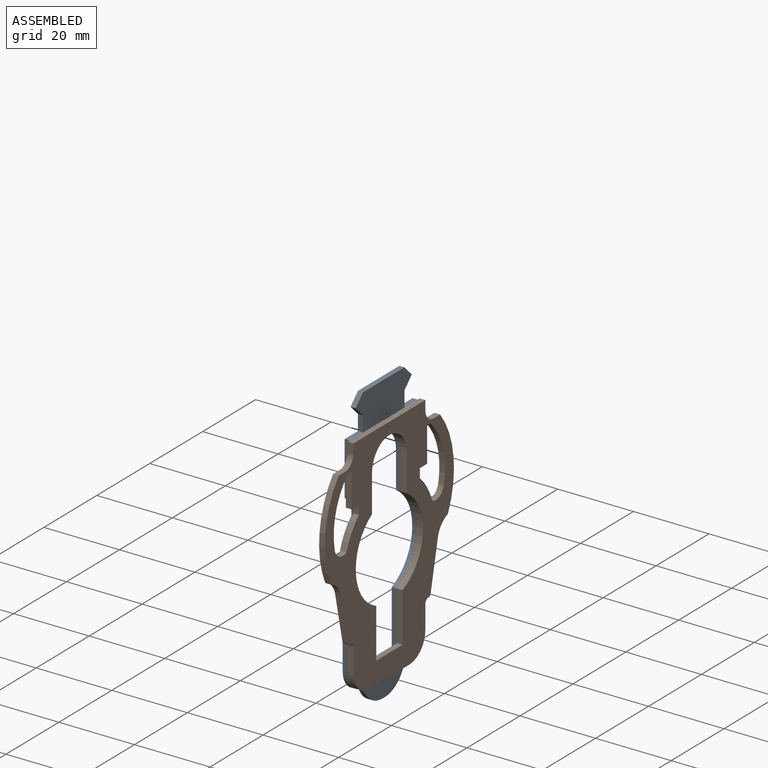
[diagram: assembled view]
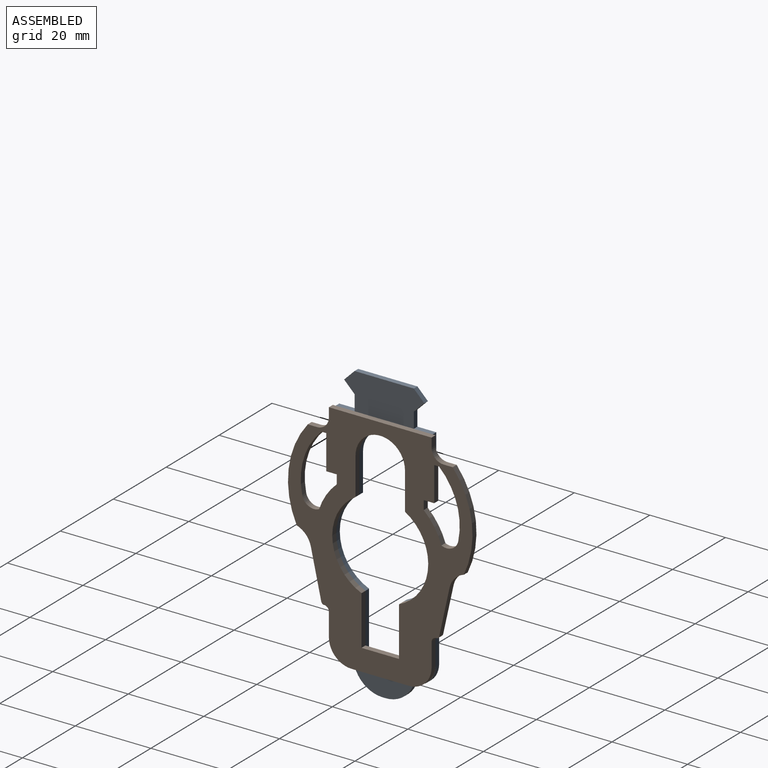
[diagram: assembled view, second angle]
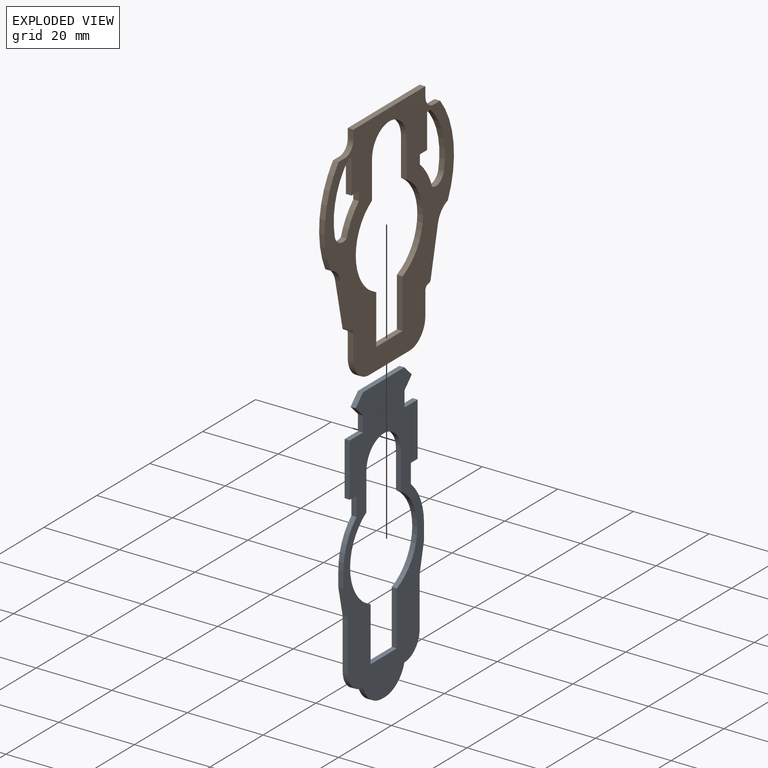
[diagram: exploded view]
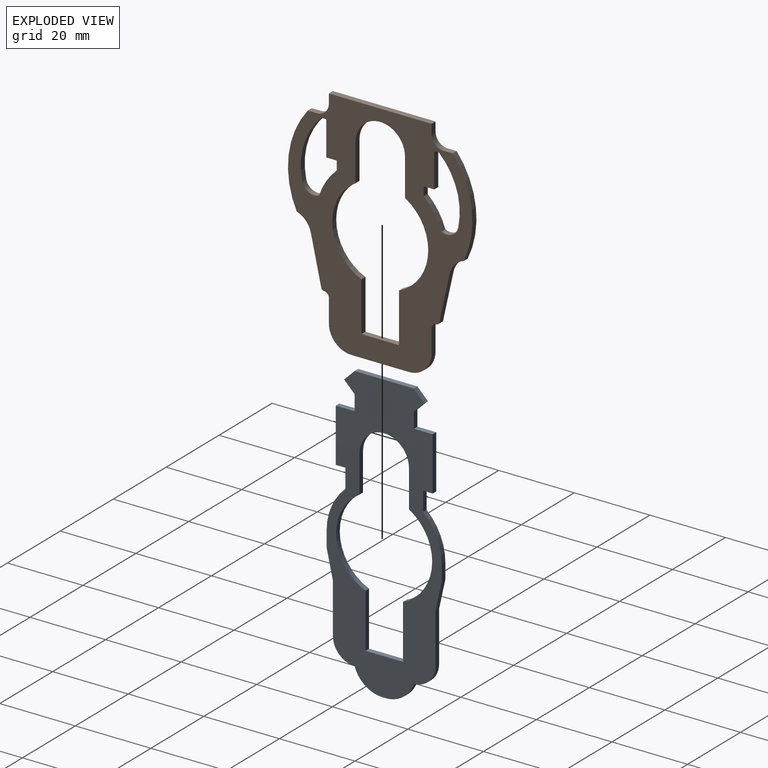
[diagram: exploded view, second angle]
ASSEMBLY  parts=2 mates=3
PART A: 38 faces, bbox 1.3x30.5x76.1 mm
  f0: plane 15.67x1.35mm, normal (0,0,1), area 21.1mm2, adj f1,f2,f36,f37
  f1: plane 2.77x2.77mm, normal (0,0.71,0.71), area 5.3mm2, adj f0,f32,f36,f37
  f2: plane 2.77x2.77mm, normal (0,-0.71,0.71), area 5.3mm2, adj f0,f33,f36,f37
  f3: plane 4.09x1.35mm, normal (0,-1,0), area 5.5mm2, adj f16,f33,f36,f37
  f4: plane 4.09x1.35mm, normal (0,1,0), area 5.5mm2, adj f31,f32,f36,f37
  f5: plane 1.35x0.73mm, normal (0,0,-1), area 1mm2, adj f34,f35,f36,f37
  f6: cylinder r=15.24mm len=11.24mm, axis (1,0,0), area 17mm2, adj f19,f20,f36,f37
  f7: cylinder r=12.7mm len=22.57mm, axis (1,0,0), area 37.6mm2, adj f12,f13,f36,f37
  f8: cylinder r=12.7mm len=22.57mm, axis (1,0,0), area 37.6mm2, adj f11,f14,f36,f37
  f9: cylinder r=15.24mm len=11.24mm, axis (1,0,0), area 17mm2, adj f27,f28,f36,f37
  f10: cylinder r=6.55mm len=13.1mm, axis (-1,0,0), area 27.7mm2, adj f11,f12,f36,f37
  f11: plane 9.88x1.35mm, normal (0,-1,0), area 13.3mm2, adj f8,f10,f36,f37
  f12: plane 9.88x1.35mm, normal (0,1,0), area 13.3mm2, adj f7,f10,f36,f37
  f13: plane 14.34x1.35mm, normal (0,1,0), area 19.3mm2, adj f7,f15,f36,f37
  f14: plane 14.34x1.35mm, normal (0,-1,0), area 19.3mm2, adj f8,f15,f36,f37
  f15: plane 9.92x1.35mm, normal (0,0,1), area 13.4mm2, adj f13,f14,f36,f37
  f16: plane 4.99x1.35mm, normal (0,0,1), area 6.7mm2, adj f3,f17,f36,f37
  f17: plane 14.16x1.35mm, normal (0,-1,0), area 19.1mm2, adj f16,f18,f36,f37
  f18: plane 2.54x1.35mm, normal (0,0,-1), area 3.4mm2, adj f17,f19,f36,f37
  f19: plane 5.08x1.35mm, normal (0,-1,0), area 6.8mm2, adj f6,f18,f36,f37
  f20: plane 4.06x1.35mm, normal (0,-1,0), area 5.5mm2, adj f6,f21,f36,f37
  f21: plane 7.45x1.65mm, normal (0,-0.98,-0.22), area 10.3mm2, adj f20,f22,f36,f37
  f22: plane 13.22x1.35mm, normal (0,-1,0), area 17.8mm2, adj f21,f23,f36,f37
  f23: cylinder r=5.75mm len=5.75mm, axis (-1,0,0), area 12.2mm2, adj f22,f34,f36,f37
  f24: cylinder r=5.75mm len=5.75mm, axis (-1,0,0), area 12.2mm2, adj f25,f35,f36,f37
  f25: plane 13.22x1.35mm, normal (0,1,0), area 17.8mm2, adj f24,f26,f36,f37
  f26: plane 7.45x1.65mm, normal (0,0.98,-0.22), area 10.3mm2, adj f25,f27,f36,f37
  f27: plane 4.06x1.35mm, normal (0,1,0), area 5.5mm2, adj f9,f26,f36,f37
  f28: plane 5.08x1.35mm, normal (0,1,0), area 6.8mm2, adj f9,f29,f36,f37
  f29: plane 2.54x1.35mm, normal (0,0,-1), area 3.4mm2, adj f28,f30,f36,f37
  f30: plane 14.16x1.35mm, normal (0,1,0), area 19.1mm2, adj f29,f31,f36,f37
  f31: plane 4.99x1.35mm, normal (0,0,1), area 6.7mm2, adj f4,f30,f36,f37
  f32: plane 2.77x2.77mm, normal (0,0.71,-0.71), area 5.3mm2, adj f1,f4,f36,f37
  f33: plane 2.77x2.77mm, normal (0,-0.71,-0.71), area 5.3mm2, adj f2,f3,f36,f37
  f34: cylinder r=7.84mm len=7.47mm, axis (-1,0,0), area 13.3mm2, adj f5,f23,f36,f37
  f35: cylinder r=7.84mm len=7.47mm, axis (-1,0,0), area 13.3mm2, adj f5,f24,f36,f37
  f36: plane 76.06x30.48mm, normal (-1,0,0), area 1023.3mm2, adj f0,f1,f2,f3,f4,f5,f6,f7
  f37: plane 76.06x30.48mm, normal (1,0,0), area 1023.3mm2, adj f0,f1,f2,f3,f4,f5,f6,f7
PART B: 46 faces, bbox 48.8x1.5x61 mm
  f0: plane 60.96x48.83mm, normal (0,1,0), area 1228.7mm2, adj f2,f3,f4,f5,f6,f7,f8,f9
  f1: plane 60.96x48.83mm, normal (0,-1,0), area 1228.7mm2, adj f2,f3,f4,f5,f6,f7,f8,f9
  f2: cylinder r=5.97mm len=5.97mm, axis (0,-1,0), area 14.1mm2, adj f0,f1,f3,f23
  f3: plane 6.1x1.5mm, normal (1,0,0), area 9.1mm2, adj f0,f1,f2,f4
  f4: cylinder r=1.27mm len=1.5mm, axis (0,-1,0), area 3mm2, adj f0,f1,f3,f5
  f5: cylinder r=0.76mm len=1.5mm, axis (0,-1,0), area 1.5mm2, adj f0,f1,f4,f6
  f6: plane 12.4x2.75mm, normal (0.98,0,-0.22), area 19mm2, adj f0,f1,f5,f7
  f7: cylinder r=5.59mm len=4.11mm, axis (0,-1,0), area 8.7mm2, adj f0,f1,f6,f8
  f8: cylinder r=23.46mm len=24.93mm, axis (0,-1,0), area 39.7mm2, adj f0,f1,f7,f9
  f9: plane 2.41x1.5mm, normal (0,0,1), area 3.6mm2, adj f0,f1,f8,f10
  f10: cylinder r=3.17mm len=3.18mm, axis (0,-1,0), area 7.5mm2, adj f0,f1,f9,f11
  f11: plane 2.41x1.5mm, normal (1,0,0), area 3.6mm2, adj f0,f1,f10,f12
  f12: plane 27.18x1.5mm, normal (0,0,1), area 40.8mm2, adj f0,f1,f11,f13
  f13: plane 2.41x1.5mm, normal (-1,0,0), area 3.6mm2, adj f0,f1,f12,f14
  f14: cylinder r=3.17mm len=3.18mm, axis (0,-1,0), area 7.5mm2, adj f0,f1,f13,f15
  f15: plane 2.41x1.5mm, normal (0,0,1), area 3.6mm2, adj f0,f1,f14,f16
  f16: cylinder r=23.46mm len=24.93mm, axis (0,-1,0), area 39.7mm2, adj f0,f1,f15,f17
  f17: cylinder r=5.59mm len=4.11mm, axis (0,-1,0), area 8.7mm2, adj f0,f1,f16,f18
  f18: plane 12.4x2.75mm, normal (-0.98,0,-0.22), area 19mm2, adj f0,f1,f17,f19
  f19: cylinder r=0.76mm len=1.5mm, axis (0,-1,0), area 1.5mm2, adj f0,f1,f18,f20
  f20: cylinder r=1.27mm len=1.5mm, axis (0,-1,0), area 3mm2, adj f0,f1,f19,f21
  f21: plane 6.1x1.5mm, normal (-1,0,0), area 9.1mm2, adj f0,f1,f20,f22
  f22: cylinder r=5.97mm len=5.97mm, axis (0,-1,0), area 14.1mm2, adj f0,f1,f21,f23
  f23: plane 15.24x1.5mm, normal (0,0,-1), area 22.9mm2, adj f0,f1,f2,f22
  f24: plane 9.88x1.5mm, normal (1,0,0), area 14.8mm2, adj f0,f1,f25,f31
  f25: cylinder r=12.7mm len=22.57mm, axis (0,-1,0), area 41.9mm2, adj f0,f1,f24,f26
  f26: plane 13.07x1.5mm, normal (1,0,0), area 19.6mm2, adj f0,f1,f25,f27
  f27: plane 9.92x1.5mm, normal (0,0,1), area 14.9mm2, adj f0,f1,f26,f28
  f28: plane 13.07x1.5mm, normal (-1,0,0), area 19.6mm2, adj f0,f1,f27,f29
  f29: cylinder r=12.7mm len=22.57mm, axis (0,-1,0), area 41.9mm2, adj f0,f1,f28,f30
  f30: plane 9.88x1.5mm, normal (-1,0,0), area 14.8mm2, adj f0,f1,f29,f31
  f31: cylinder r=6.55mm len=13.1mm, axis (0,-1,0), area 30.9mm2, adj f0,f1,f24,f30
  f32: plane 9.13x1.5mm, normal (1,0,0), area 13.7mm2, adj f0,f1,f33,f38
  f33: plane 2.78x1.5mm, normal (0,0,-1), area 4.2mm2, adj f0,f1,f32,f34
  f34: plane 2.38x1.5mm, normal (1,0,0), area 3.6mm2, adj f0,f1,f33,f35
  f35: cylinder r=17.07mm len=7.21mm, axis (0,-1,0), area 13mm2, adj f0,f1,f34,f36
  f36: cylinder r=3.16mm len=4.46mm, axis (0,-1,0), area 8.6mm2, adj f0,f1,f35,f37
  f37: cylinder r=17.78mm len=16.52mm, axis (0,-1,0), area 27.1mm2, adj f0,f1,f36,f38
  f38: plane 1.5x1.27mm, normal (0,0,-1), area 1.9mm2, adj f0,f1,f32,f37
  f39: plane 2.78x1.5mm, normal (0,0,-1), area 4.2mm2, adj f0,f1,f40,f45
  f40: plane 9.13x1.5mm, normal (-1,0,0), area 13.7mm2, adj f0,f1,f39,f41
  f41: plane 1.5x1.27mm, normal (0,0,-1), area 1.9mm2, adj f0,f1,f40,f42
  f42: cylinder r=17.78mm len=16.52mm, axis (0,-1,0), area 27.1mm2, adj f0,f1,f41,f43
  f43: cylinder r=3.16mm len=4.46mm, axis (0,-1,0), area 8.6mm2, adj f0,f1,f42,f44
  f44: cylinder r=17.07mm len=7.21mm, axis (0,-1,0), area 13mm2, adj f0,f1,f43,f45
  f45: plane 2.38x1.5mm, normal (-1,0,0), area 3.6mm2, adj f0,f1,f39,f44
PLACE A t=(25.2,-31.74,10.45)mm fixed
PLACE B rot(axis=(0,0,1),90deg) t=(-86.33,-31.74,26.96)mm
MATE parallel B.f12 <-> A.f0  axis (0,0,1) through (-87.08,-31.74,57.44)mm
MATE planar B.f0 <-> A.f37  axis (-1,0,0) through (-87.83,-31.74,27.83)mm
MATE cylindrical B.f29 <-> A.f6  axis (1,0,0) through (-87.08,-31.74,26.96)mm
